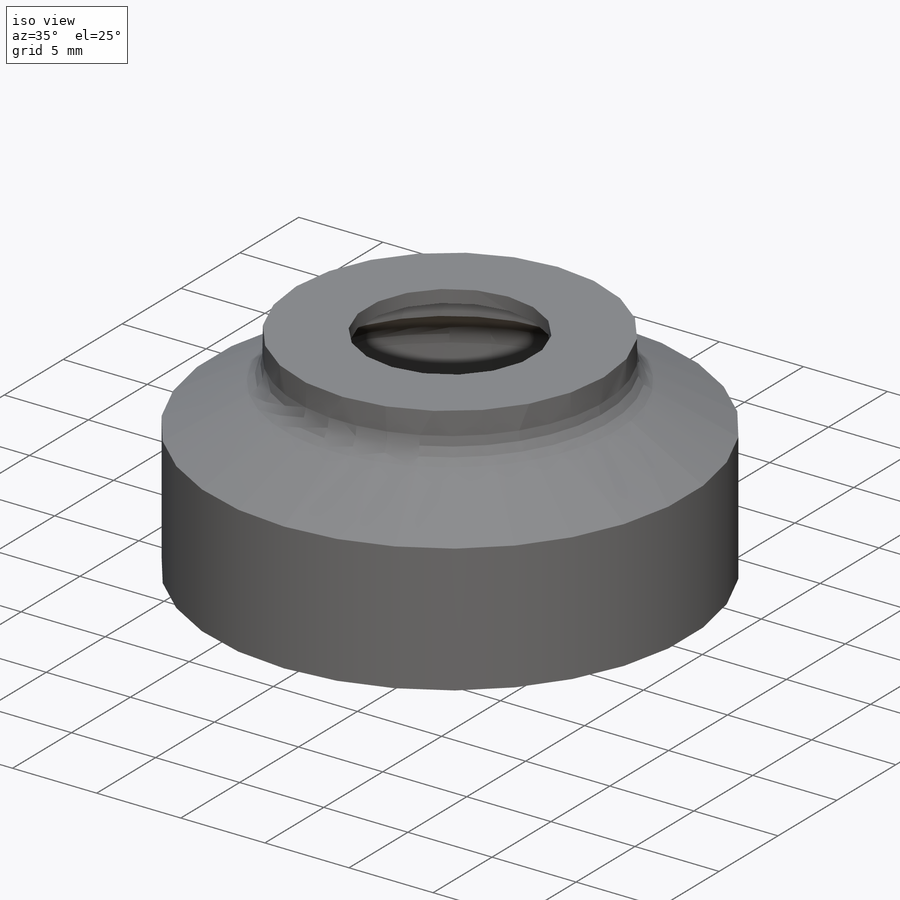
[diagram: iso view]
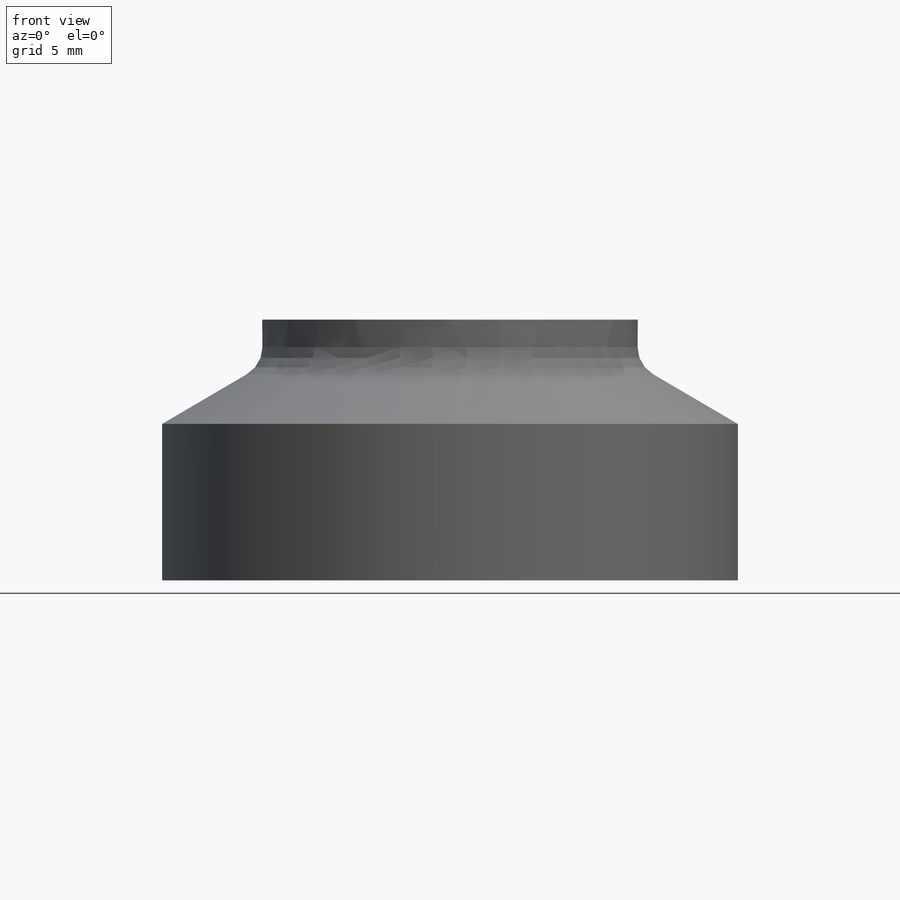
[diagram: front view]
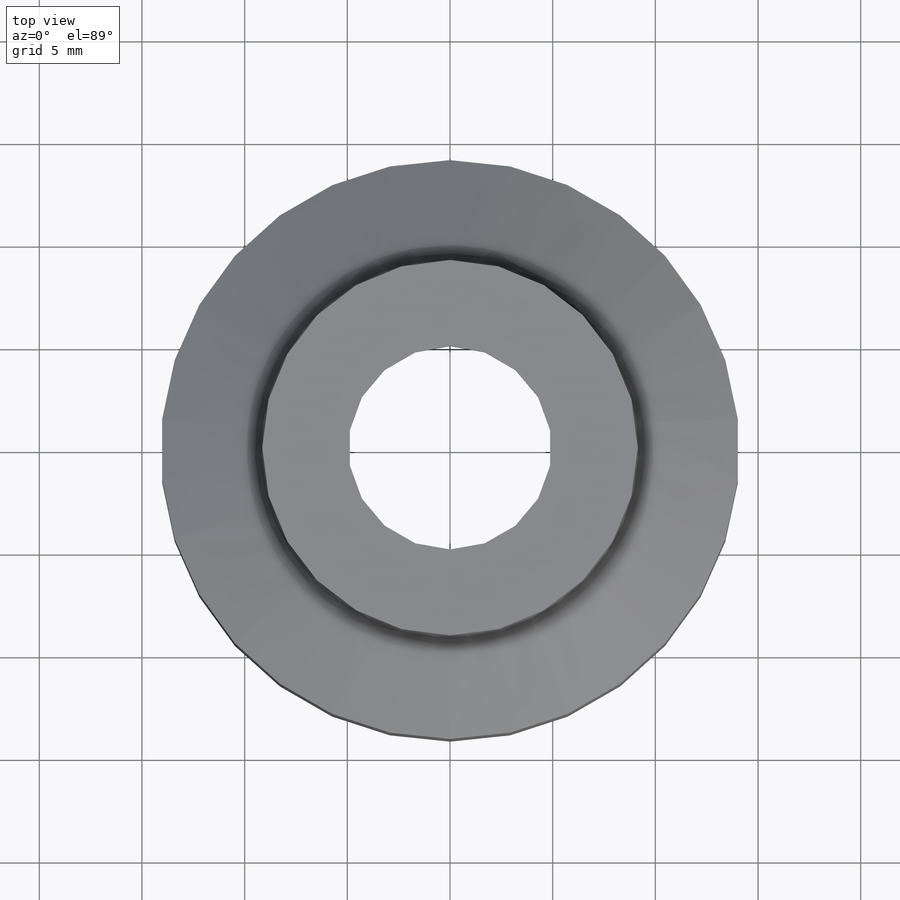
[diagram: top view]
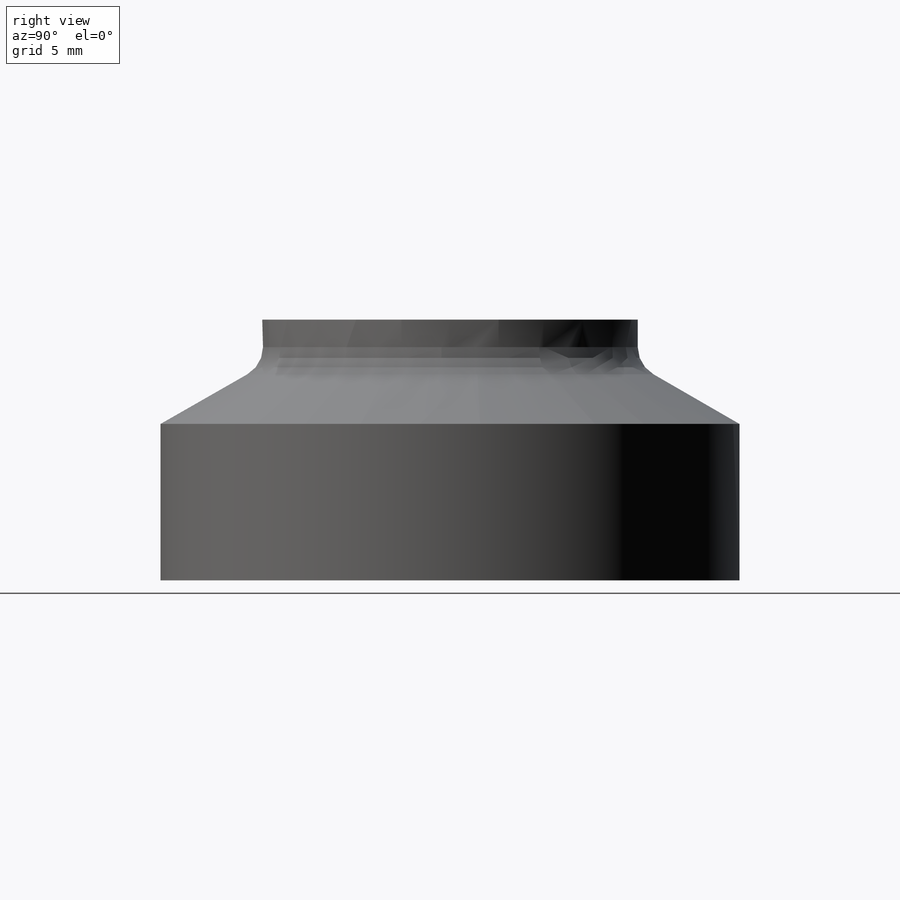
[diagram: right view]
SOLIDWORKS PART (.sldprt)
format: sldprt  version: not decoded by parser v0  size: 245,760 bytes
history: native  units: mm
features: sketch x3, cut_revolve x2, material x1, extrude x1 (+11 scaffold rows collapsed)
feature tree (18):
  scaffold x11  (default folders/planes/origin — collapsed)
  material  "Alloy Steel"
  sketch  "Sketch1"  dims[D1=28.194mm]
  extrude  "Boss-Extrude1"  Depth=12.7mm
  sketch  "Sketch2"  dims[c1.D7=1.524mm c1.D1=9.906mm c1.D2=16.764mm c1.D3=26.67mm c1.D4=2.286mm c1.D5=0.762mm c1.D6=4.953mm c2.D6=60.0deg]
  cut_revolve  "Cut-Revolve1"  Angle=360deg
  sketch  "Sketch3"  dims[c1.D1=1.524mm c1.D2=7.62mm c1.D3=~2.575173mm c2.D3=60.0deg c2.D4=18.288mm]
  cut_revolve  "Cut-Revolve2"  Angle=360deg
decode coverage: 6 of 6 modeling features carry decoded parameters
note: ~ marks probable driven/reference dimensions
note: suppression state not decoded; provenance and decode notes live in map.json
